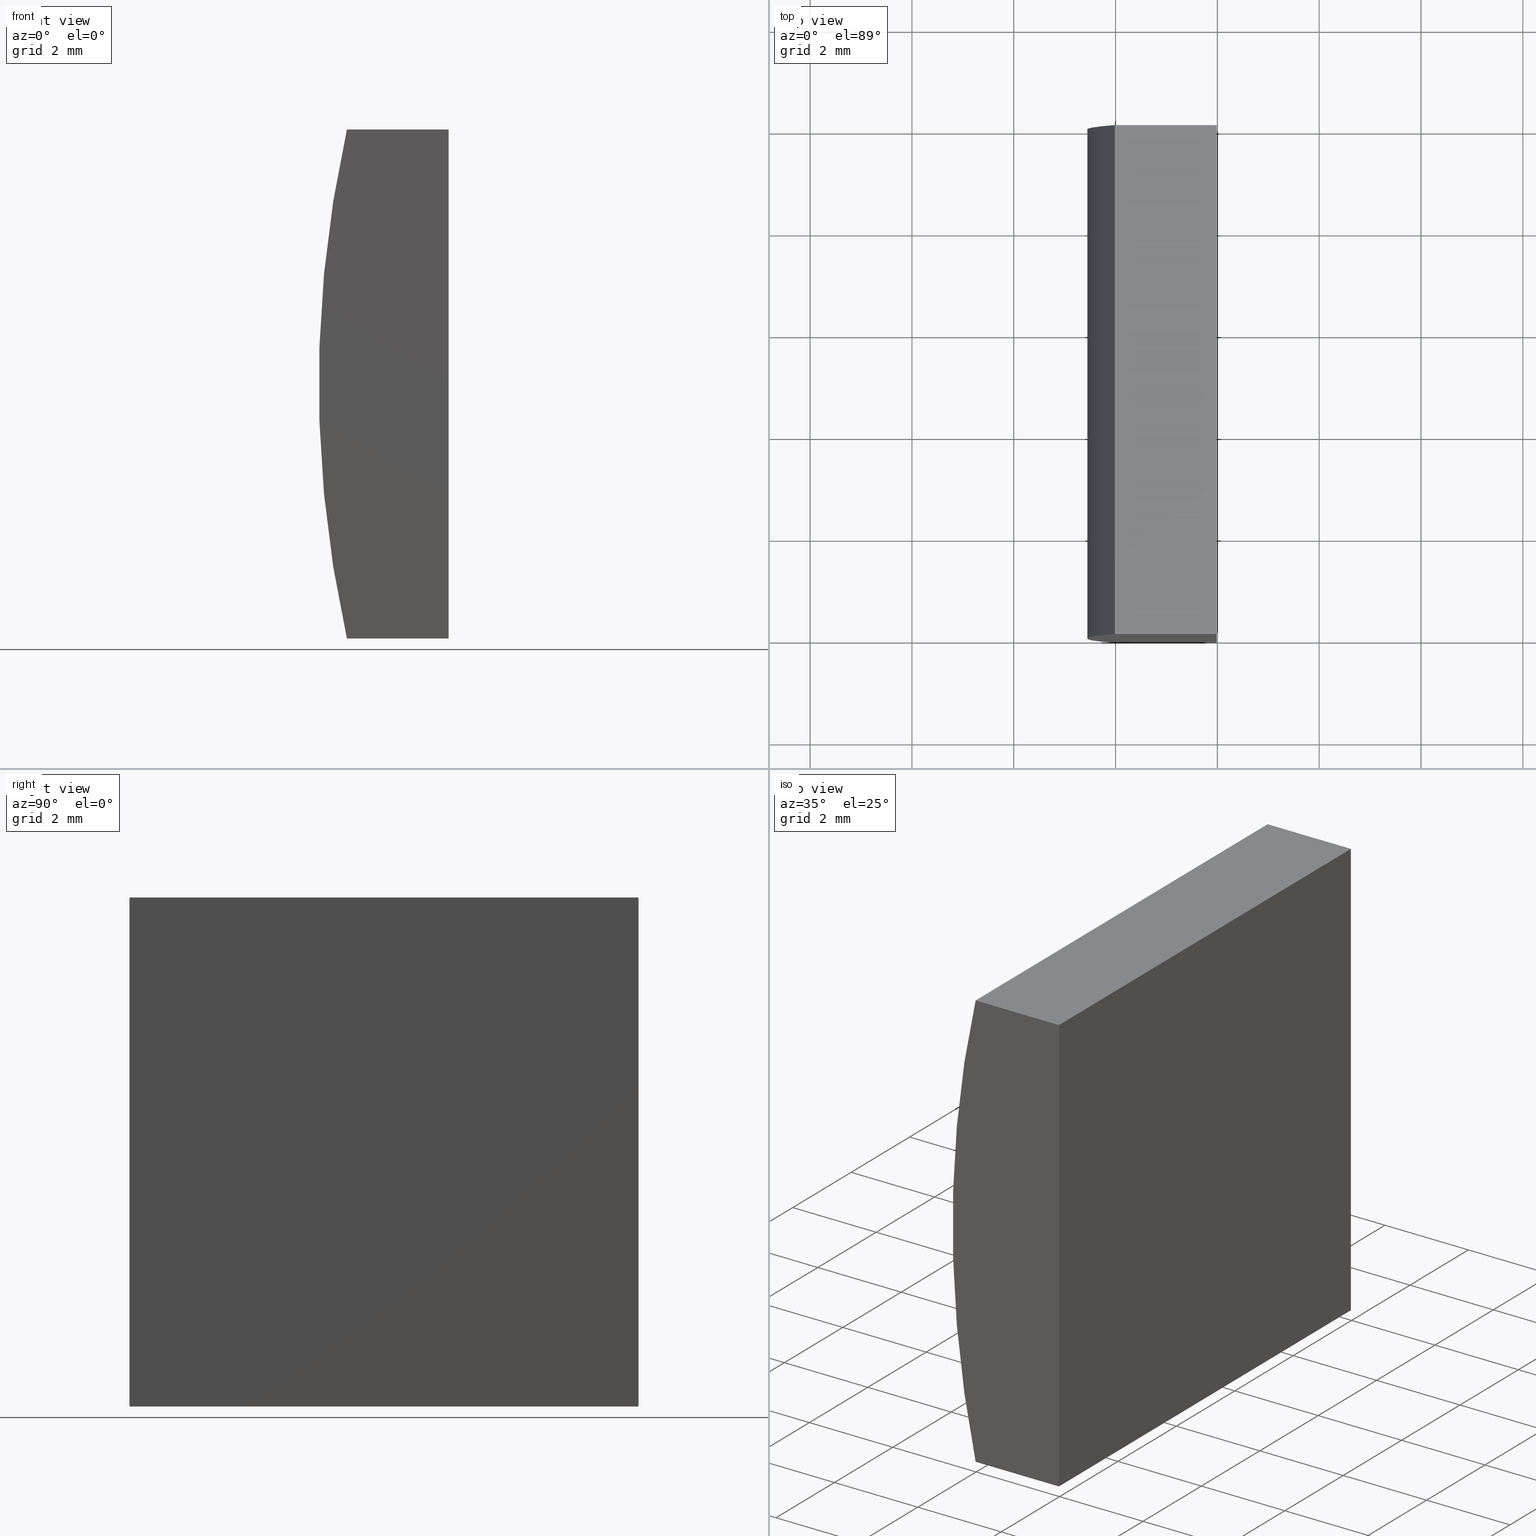
[diagram: canonical four-view strip — front | top / right | iso, engineering-drawing reading convention]
A machine part, canonical four-view strip (front | top / right | iso — engineering-drawing reading convention). The complete STEP part file that produces these views, byte-faithful:
ISO-10303-21;
HEADER;
FILE_DESCRIPTION (( 'STEP AP214' ),
    '1' );
FILE_NAME ('155268.STEP',
    '2019-06-25T03:29:49',
    ( 'user' ),
    ( '΢���й�' ),
    'SwSTEP 2.0',
    'SolidWorks 2016',
    '' );
FILE_SCHEMA (( 'AUTOMOTIVE_DESIGN' ));
ENDSEC;

DATA;
#1 = CARTESIAN_POINT ( 'NONE',  ( -18.01277277529439400, 10.00000000000000000, 5.000000000000000000 ) ) ;
#2 = VECTOR ( 'NONE', #25, 1000.000000000000000 ) ;
#3 = FILL_AREA_STYLE_COLOUR ( '', #119 ) ;
#4 = ORIENTED_EDGE ( 'NONE', *, *, #56, .T. ) ;
#5 = DIRECTION ( 'NONE',  ( -0.0000000000000000000, -1.000000000000000000, -0.0000000000000000000 ) ) ;
#6 = DIRECTION ( 'NONE',  ( -0.0000000000000000000, -1.000000000000000000, -0.0000000000000000000 ) ) ;
#7 = PRESENTATION_LAYER_ASSIGNMENT (  '', '', ( #92 ) ) ;
#8 = AXIS2_PLACEMENT_3D ( 'NONE', #48, #164, #46 ) ;
#9 = UNCERTAINTY_MEASURE_WITH_UNIT (LENGTH_MEASURE( 1.000000000000000100E-005 ), #124, 'distance_accuracy_value', 'NONE');
#10 = CARTESIAN_POINT ( 'NONE',  ( -16.01479566514873900, 10.00000000000000000, -4.999999999999998200 ) ) ;
#11 = ORIENTED_EDGE ( 'NONE', *, *, #98, .T. ) ;
#12 = AXIS2_PLACEMENT_3D ( 'NONE', #66, #78, #60 ) ;
#13 = VERTEX_POINT ( 'NONE', #65 ) ;
#14 = PRESENTATION_STYLE_ASSIGNMENT (( #173 ) ) ;
#15 = PRESENTATION_LAYER_ASSIGNMENT (  '', '', ( #18 ) ) ;
#16 = ORIENTED_EDGE ( 'NONE', *, *, #127, .F. ) ;
#17 = DIRECTION ( 'NONE',  ( 0.0000000000000000000, 0.0000000000000000000, 1.000000000000000000 ) ) ;
#18 = STYLED_ITEM ( 'NONE', ( #72 ), #118 ) ;
#19 = SURFACE_STYLE_FILL_AREA ( #187 ) ;
#20 = VECTOR ( 'NONE', #111, 1000.000000000000000 ) ;
#21 = CARTESIAN_POINT ( 'NONE',  ( 0.0000000000000000000, 0.0000000000000000000, 0.0000000000000000000 ) ) ;
#22 = CARTESIAN_POINT ( 'NONE',  ( -18.01277277529439400, 10.00000000000000000, -5.000000000000000000 ) ) ;
#23 = CARTESIAN_POINT ( 'NONE',  ( -16.01479566514873600, 10.00000000000000000, 5.000000000000000000 ) ) ;
#24 = FACE_OUTER_BOUND ( 'NONE', #90, .T. ) ;
#25 = DIRECTION ( 'NONE',  ( -0.0000000000000000000, -1.000000000000000000, -0.0000000000000000000 ) ) ;
#26 = VECTOR ( 'NONE', #139, 1000.000000000000000 ) ;
#27 =( GEOMETRIC_REPRESENTATION_CONTEXT ( 3 ) GLOBAL_UNCERTAINTY_ASSIGNED_CONTEXT ( ( #175 ) ) GLOBAL_UNIT_ASSIGNED_CONTEXT ( ( #163, #44, #143 ) ) REPRESENTATION_CONTEXT ( 'NONE', 'WORKASPACE' ) );
#28 = EDGE_LOOP ( 'NONE', ( #34, #57, #76, #97 ) ) ;
#29 = CARTESIAN_POINT ( 'NONE',  ( -16.01479566514873600, 0.0000000000000000000, 5.000000000000000000 ) ) ;
#30 = CARTESIAN_POINT ( 'NONE',  ( -18.01277277529439400, 10.00000000000000000, -5.000000000000000000 ) ) ;
#31 = VERTEX_POINT ( 'NONE', #33 ) ;
#32 = CARTESIAN_POINT ( 'NONE',  ( -18.01277277529439400, 0.0000000000000000000, -5.000000000000000000 ) ) ;
#33 = CARTESIAN_POINT ( 'NONE',  ( -18.01277277529439400, 10.00000000000000000, 5.000000000000000000 ) ) ;
#34 = ORIENTED_EDGE ( 'NONE', *, *, #73, .T. ) ;
#35 = EDGE_LOOP ( 'NONE', ( #140, #198, #197, #4 ) ) ;
#36 = DIRECTION ( 'NONE',  ( 0.0000000000000000000, 0.0000000000000000000, -1.000000000000000000 ) ) ;
#37 = ADVANCED_FACE ( 'NONE', ( #102 ), #112, .T. ) ;
#38 = SHAPE_DEFINITION_REPRESENTATION ( #41, #118 ) ;
#39 = LINE ( 'NONE', #192, #158 ) ;
#40 = PRODUCT_DEFINITION_CONTEXT ( 'detailed design', #87, 'design' ) ;
#41 = PRODUCT_DEFINITION_SHAPE ( 'NONE', 'NONE',  #75 ) ;
#42 =( NAMED_UNIT ( * ) PLANE_ANGLE_UNIT ( ) SI_UNIT ( $, .RADIAN. ) );
#43 = PRODUCT_DEFINITION_FORMATION_WITH_SPECIFIED_SOURCE ( '�κ�', '', #152, .NOT_KNOWN. ) ;
#44 =( NAMED_UNIT ( * ) PLANE_ANGLE_UNIT ( ) SI_UNIT ( $, .RADIAN. ) );
#45 = AXIS2_PLACEMENT_3D ( 'NONE', #114, #5, #36 ) ;
#46 = DIRECTION ( 'NONE',  ( 0.0000000000000000000, -0.0000000000000000000, 1.000000000000000000 ) ) ;
#47 = VECTOR ( 'NONE', #167, 1000.000000000000000 ) ;
#48 = CARTESIAN_POINT ( 'NONE',  ( 4.355204334851265500, 0.0000000000000000000, 4.286263797015675000E-017 ) ) ;
#49 = FILL_AREA_STYLE ('',( #3 ) ) ;
#50 = CARTESIAN_POINT ( 'NONE',  ( -18.01277277529439400, 10.00000000000000000, 5.000000000000000000 ) ) ;
#51 = CARTESIAN_POINT ( 'NONE',  ( -16.01479566514873900, 0.0000000000000000000, -4.999999999999998200 ) ) ;
#52 = LINE ( 'NONE', #50, #80 ) ;
#53 = PRODUCT_RELATED_PRODUCT_CATEGORY ( 'part', '', ( #152 ) ) ;
#54 =( GEOMETRIC_REPRESENTATION_CONTEXT ( 3 ) GLOBAL_UNCERTAINTY_ASSIGNED_CONTEXT ( ( #9 ) ) GLOBAL_UNIT_ASSIGNED_CONTEXT ( ( #124, #161, #107 ) ) REPRESENTATION_CONTEXT ( 'NONE', 'WORKASPACE' ) );
#55 = LINE ( 'NONE', #30, #2 ) ;
#56 = EDGE_CURVE ( 'NONE', #13, #155, #200, .T. ) ;
#57 = ORIENTED_EDGE ( 'NONE', *, *, #185, .F. ) ;
#58 = AXIS2_PLACEMENT_3D ( 'NONE', #180, #194, #151 ) ;
#59 =( LENGTH_UNIT ( ) NAMED_UNIT ( * ) SI_UNIT ( .MILLI., .METRE. ) );
#60 = DIRECTION ( 'NONE',  ( 1.000000000000000000, 0.0000000000000000000, 8.682399148458433600E-016 ) ) ;
#61 = SURFACE_SIDE_STYLE ('',( #166 ) ) ;
#62 = DIRECTION ( 'NONE',  ( 0.0000000000000000000, 1.000000000000000000, 0.0000000000000000000 ) ) ;
#63 = FACE_OUTER_BOUND ( 'NONE', #93, .T. ) ;
#64 = CARTESIAN_POINT ( 'NONE',  ( -18.01277277529439400, 0.0000000000000000000, 5.000000000000000000 ) ) ;
#65 = CARTESIAN_POINT ( 'NONE',  ( -16.01479566514873900, 10.00000000000000000, -4.999999999999998200 ) ) ;
#66 = CARTESIAN_POINT ( 'NONE',  ( -18.01277277529439400, 10.00000000000000000, -5.000000000000000000 ) ) ;
#67 =( GEOMETRIC_REPRESENTATION_CONTEXT ( 3 ) GLOBAL_UNCERTAINTY_ASSIGNED_CONTEXT ( ( #113 ) ) GLOBAL_UNIT_ASSIGNED_CONTEXT ( ( #59, #42, #142 ) ) REPRESENTATION_CONTEXT ( 'NONE', 'WORKASPACE' ) );
#68 = VECTOR ( 'NONE', #154, 1000.000000000000000 ) ;
#69 = ORIENTED_EDGE ( 'NONE', *, *, #182, .F. ) ;
#70 = ORIENTED_EDGE ( 'NONE', *, *, #137, .T. ) ;
#71 = EDGE_LOOP ( 'NONE', ( #11, #115, #69, #138 ) ) ;
#72 = PRESENTATION_STYLE_ASSIGNMENT (( #176 ) ) ;
#73 = EDGE_CURVE ( 'NONE', #121, #162, #81, .T. ) ;
#74 = SURFACE_SIDE_STYLE ('',( #19 ) ) ;
#75 = PRODUCT_DEFINITION ( 'δ֪', '', #43, #40 ) ;
#76 = ORIENTED_EDGE ( 'NONE', *, *, #106, .F. ) ;
#77 = DIRECTION ( 'NONE',  ( 3.469446951953615200E-016, 0.0000000000000000000, 1.000000000000000000 ) ) ;
#78 = DIRECTION ( 'NONE',  ( -8.682399148458433600E-016, 0.0000000000000000000, 1.000000000000000000 ) ) ;
#79 = CARTESIAN_POINT ( 'NONE',  ( -16.01479566514873900, 10.00000000000000000, -4.999999999999998200 ) ) ;
#80 = VECTOR ( 'NONE', #6, 1000.000000000000000 ) ;
#81 = LINE ( 'NONE', #64, #117 ) ;
#82 = CARTESIAN_POINT ( 'NONE',  ( 4.355204334851265500, 0.0000000000000000000, 4.286263797015675000E-017 ) ) ;
#83 = CARTESIAN_POINT ( 'NONE',  ( -18.01277277529439400, 10.00000000000000000, -5.000000000000000000 ) ) ;
#84 = LINE ( 'NONE', #10, #26 ) ;
#85 = ORIENTED_EDGE ( 'NONE', *, *, #178, .F. ) ;
#86 = LINE ( 'NONE', #51, #134 ) ;
#87 = APPLICATION_CONTEXT ( 'automotive_design' ) ;
#88 = FILL_AREA_STYLE_COLOUR ( '', #196 ) ;
#89 = DIRECTION ( 'NONE',  ( 0.0000000000000000000, 1.000000000000000000, 0.0000000000000000000 ) ) ;
#90 = EDGE_LOOP ( 'NONE', ( #174, #16, #145, #136 ) ) ;
#91 = CARTESIAN_POINT ( 'NONE',  ( -16.01479566514873900, 0.0000000000000000000, -4.999999999999998200 ) ) ;
#92 = STYLED_ITEM ( 'NONE', ( #14 ), #135 ) ;
#93 = EDGE_LOOP ( 'NONE', ( #70, #189, #85, #181 ) ) ;
#94 = PLANE ( 'NONE',  #12 ) ;
#95 = EDGE_CURVE ( 'NONE', #31, #121, #52, .T. ) ;
#96 = LINE ( 'NONE', #144, #47 ) ;
#97 = ORIENTED_EDGE ( 'NONE', *, *, #95, .T. ) ;
#98 = EDGE_CURVE ( 'NONE', #132, #121, #150, .T. ) ;
#99 = LINE ( 'NONE', #32, #20 ) ;
#100 = EDGE_LOOP ( 'NONE', ( #133, #184, #141, #128 ) ) ;
#101 = MECHANICAL_DESIGN_GEOMETRIC_PRESENTATION_REPRESENTATION (  '', ( #92 ), #54 ) ;
#102 = FACE_OUTER_BOUND ( 'NONE', #35, .T. ) ;
#103 = FACE_OUTER_BOUND ( 'NONE', #100, .T. ) ;
#104 = VERTEX_POINT ( 'NONE', #23 ) ;
#105 = DIRECTION ( 'NONE',  ( 1.000000000000000000, 0.0000000000000000000, 0.0000000000000000000 ) ) ;
#106 = EDGE_CURVE ( 'NONE', #31, #104, #39, .T. ) ;
#107 =( NAMED_UNIT ( * ) SI_UNIT ( $, .STERADIAN. ) SOLID_ANGLE_UNIT ( ) );
#108 = VECTOR ( 'NONE', #179, 1000.000000000000000 ) ;
#109 = CARTESIAN_POINT ( 'NONE',  ( -16.01479566514873900, 10.00000000000000000, -4.999999999999998200 ) ) ;
#110 = CARTESIAN_POINT ( 'NONE',  ( 4.355204334851265500, 10.00000000000000000, 4.286263797015675000E-017 ) ) ;
#111 = DIRECTION ( 'NONE',  ( -1.000000000000000000, -0.0000000000000000000, -8.682399148458433600E-016 ) ) ;
#112 = PLANE ( 'NONE',  #58 ) ;
#113 = UNCERTAINTY_MEASURE_WITH_UNIT (LENGTH_MEASURE( 1.000000000000000100E-005 ), #59, 'distance_accuracy_value', 'NONE');
#114 = CARTESIAN_POINT ( 'NONE',  ( 4.355204334851265500, 10.00000000000000000, 4.286263797015675000E-017 ) ) ;
#115 = ORIENTED_EDGE ( 'NONE', *, *, #95, .F. ) ;
#116 = AXIS2_PLACEMENT_3D ( 'NONE', #21, #17, #105 ) ;
#117 = VECTOR ( 'NONE', #193, 1000.000000000000000 ) ;
#118 = ADVANCED_BREP_SHAPE_REPRESENTATION ( '155268', ( #135, #116 ), #27 ) ;
#119 = COLOUR_RGB ( '',1.000000000000000000, 1.000000000000000000, 1.000000000000000000 ) ;
#120 = FACE_OUTER_BOUND ( 'NONE', #28, .T. ) ;
#121 = VERTEX_POINT ( 'NONE', #149 ) ;
#122 = DIRECTION ( 'NONE',  ( 0.0000000000000000000, 0.0000000000000000000, -1.000000000000000000 ) ) ;
#123 = AXIS2_PLACEMENT_3D ( 'NONE', #109, #188, #77 ) ;
#124 =( LENGTH_UNIT ( ) NAMED_UNIT ( * ) SI_UNIT ( .MILLI., .METRE. ) );
#125 = APPLICATION_PROTOCOL_DEFINITION ( 'draft international standard', 'automotive_design', 1998, #204 ) ;
#126 = PLANE ( 'NONE',  #123 ) ;
#127 = EDGE_CURVE ( 'NONE', #171, #132, #99, .T. ) ;
#128 = ORIENTED_EDGE ( 'NONE', *, *, #160, .T. ) ;
#129 = PLANE ( 'NONE',  #195 ) ;
#130 = AXIS2_PLACEMENT_3D ( 'NONE', #82, #62, #165 ) ;
#131 = CYLINDRICAL_SURFACE ( 'NONE', #45, 22.92000000000000200 ) ;
#132 = VERTEX_POINT ( 'NONE', #190 ) ;
#133 = ORIENTED_EDGE ( 'NONE', *, *, #127, .T. ) ;
#134 = VECTOR ( 'NONE', #153, 1000.000000000000000 ) ;
#135 = MANIFOLD_SOLID_BREP ( '͹̨-����1', #168 ) ;
#136 = ORIENTED_EDGE ( 'NONE', *, *, #73, .F. ) ;
#137 = EDGE_CURVE ( 'NONE', #162, #171, #86, .T. ) ;
#138 = ORIENTED_EDGE ( 'NONE', *, *, #169, .T. ) ;
#139 = DIRECTION ( 'NONE',  ( -0.0000000000000000000, -1.000000000000000000, -0.0000000000000000000 ) ) ;
#140 = ORIENTED_EDGE ( 'NONE', *, *, #182, .T. ) ;
#141 = ORIENTED_EDGE ( 'NONE', *, *, #56, .F. ) ;
#142 =( NAMED_UNIT ( * ) SI_UNIT ( $, .STERADIAN. ) SOLID_ANGLE_UNIT ( ) );
#143 =( NAMED_UNIT ( * ) SI_UNIT ( $, .STERADIAN. ) SOLID_ANGLE_UNIT ( ) );
#144 = CARTESIAN_POINT ( 'NONE',  ( -16.01479566514873600, 10.00000000000000000, 5.000000000000000000 ) ) ;
#145 = ORIENTED_EDGE ( 'NONE', *, *, #137, .F. ) ;
#146 = PLANE ( 'NONE',  #8 ) ;
#147 = DIRECTION ( 'NONE',  ( 1.000000000000000000, 0.0000000000000000000, 0.0000000000000000000 ) ) ;
#148 = CIRCLE ( 'NONE', #172, 22.92000000000000200 ) ;
#149 = CARTESIAN_POINT ( 'NONE',  ( -18.01277277529439400, 0.0000000000000000000, 5.000000000000000000 ) ) ;
#150 = CIRCLE ( 'NONE', #130, 22.92000000000000200 ) ;
#151 = DIRECTION ( 'NONE',  ( 0.0000000000000000000, -0.0000000000000000000, 1.000000000000000000 ) ) ;
#152 = PRODUCT ( '155268', '155268', '', ( #203 ) ) ;
#153 = DIRECTION ( 'NONE',  ( -3.469446951953614700E-016, -0.0000000000000000000, -1.000000000000000000 ) ) ;
#154 = DIRECTION ( 'NONE',  ( -3.469446951953614700E-016, -0.0000000000000000000, -1.000000000000000000 ) ) ;
#155 = VERTEX_POINT ( 'NONE', #22 ) ;
#156 = ADVANCED_FACE ( 'NONE', ( #103 ), #94, .F. ) ;
#157 = ADVANCED_FACE ( 'NONE', ( #120 ), #129, .F. ) ;
#158 = VECTOR ( 'NONE', #147, 1000.000000000000000 ) ;
#159 = DIRECTION ( 'NONE',  ( -1.000000000000000000, 0.0000000000000000000, -0.0000000000000000000 ) ) ;
#160 = EDGE_CURVE ( 'NONE', #13, #171, #84, .T. ) ;
#161 =( NAMED_UNIT ( * ) PLANE_ANGLE_UNIT ( ) SI_UNIT ( $, .RADIAN. ) );
#162 = VERTEX_POINT ( 'NONE', #29 ) ;
#163 =( LENGTH_UNIT ( ) NAMED_UNIT ( * ) SI_UNIT ( .MILLI., .METRE. ) );
#164 = DIRECTION ( 'NONE',  ( 0.0000000000000000000, 1.000000000000000000, 0.0000000000000000000 ) ) ;
#165 = DIRECTION ( 'NONE',  ( 0.0000000000000000000, 0.0000000000000000000, 1.000000000000000000 ) ) ;
#166 = SURFACE_STYLE_FILL_AREA ( #49 ) ;
#167 = DIRECTION ( 'NONE',  ( -0.0000000000000000000, -1.000000000000000000, -0.0000000000000000000 ) ) ;
#168 = CLOSED_SHELL ( 'NONE', ( #170, #157, #201, #156, #37, #183 ) ) ;
#169 = EDGE_CURVE ( 'NONE', #155, #132, #55, .T. ) ;
#170 = ADVANCED_FACE ( 'NONE', ( #191 ), #131, .T. ) ;
#171 = VERTEX_POINT ( 'NONE', #91 ) ;
#172 = AXIS2_PLACEMENT_3D ( 'NONE', #110, #89, #177 ) ;
#173 = SURFACE_STYLE_USAGE ( .BOTH. , #61 ) ;
#174 = ORIENTED_EDGE ( 'NONE', *, *, #98, .F. ) ;
#175 = UNCERTAINTY_MEASURE_WITH_UNIT (LENGTH_MEASURE( 1.000000000000000100E-005 ), #163, 'distance_accuracy_value', 'NONE');
#176 = SURFACE_STYLE_USAGE ( .BOTH. , #74 ) ;
#177 = DIRECTION ( 'NONE',  ( 0.0000000000000000000, 0.0000000000000000000, 1.000000000000000000 ) ) ;
#178 = EDGE_CURVE ( 'NONE', #104, #13, #199, .T. ) ;
#179 = DIRECTION ( 'NONE',  ( -1.000000000000000000, -0.0000000000000000000, -8.682399148458433600E-016 ) ) ;
#180 = CARTESIAN_POINT ( 'NONE',  ( 4.355204334851265500, 10.00000000000000000, 4.286263797015675000E-017 ) ) ;
#181 = ORIENTED_EDGE ( 'NONE', *, *, #185, .T. ) ;
#182 = EDGE_CURVE ( 'NONE', #155, #31, #148, .T. ) ;
#183 = ADVANCED_FACE ( 'NONE', ( #24 ), #146, .F. ) ;
#184 = ORIENTED_EDGE ( 'NONE', *, *, #169, .F. ) ;
#185 = EDGE_CURVE ( 'NONE', #104, #162, #96, .T. ) ;
#186 = APPLICATION_PROTOCOL_DEFINITION ( 'draft international standard', 'automotive_design', 1998, #87 ) ;
#187 = FILL_AREA_STYLE ('',( #88 ) ) ;
#188 = DIRECTION ( 'NONE',  ( -1.000000000000000000, 0.0000000000000000000, 3.469446951953615200E-016 ) ) ;
#189 = ORIENTED_EDGE ( 'NONE', *, *, #160, .F. ) ;
#190 = CARTESIAN_POINT ( 'NONE',  ( -18.01277277529439400, 0.0000000000000000000, -5.000000000000000000 ) ) ;
#191 = FACE_OUTER_BOUND ( 'NONE', #71, .T. ) ;
#192 = CARTESIAN_POINT ( 'NONE',  ( -18.01277277529439400, 10.00000000000000000, 5.000000000000000000 ) ) ;
#193 = DIRECTION ( 'NONE',  ( 1.000000000000000000, 0.0000000000000000000, 0.0000000000000000000 ) ) ;
#194 = DIRECTION ( 'NONE',  ( 0.0000000000000000000, 1.000000000000000000, 0.0000000000000000000 ) ) ;
#195 = AXIS2_PLACEMENT_3D ( 'NONE', #1, #122, #159 ) ;
#196 = COLOUR_RGB ( '',1.000000000000000000, 1.000000000000000000, 1.000000000000000000 ) ;
#197 = ORIENTED_EDGE ( 'NONE', *, *, #178, .T. ) ;
#198 = ORIENTED_EDGE ( 'NONE', *, *, #106, .T. ) ;
#199 = LINE ( 'NONE', #79, #68 ) ;
#200 = LINE ( 'NONE', #83, #108 ) ;
#201 = ADVANCED_FACE ( 'NONE', ( #63 ), #126, .F. ) ;
#202 = MECHANICAL_DESIGN_GEOMETRIC_PRESENTATION_REPRESENTATION (  '', ( #18 ), #67 ) ;
#203 = PRODUCT_CONTEXT ( 'NONE', #204, 'mechanical' ) ;
#204 = APPLICATION_CONTEXT ( 'automotive_design' ) ;
ENDSEC;
END-ISO-10303-21;
